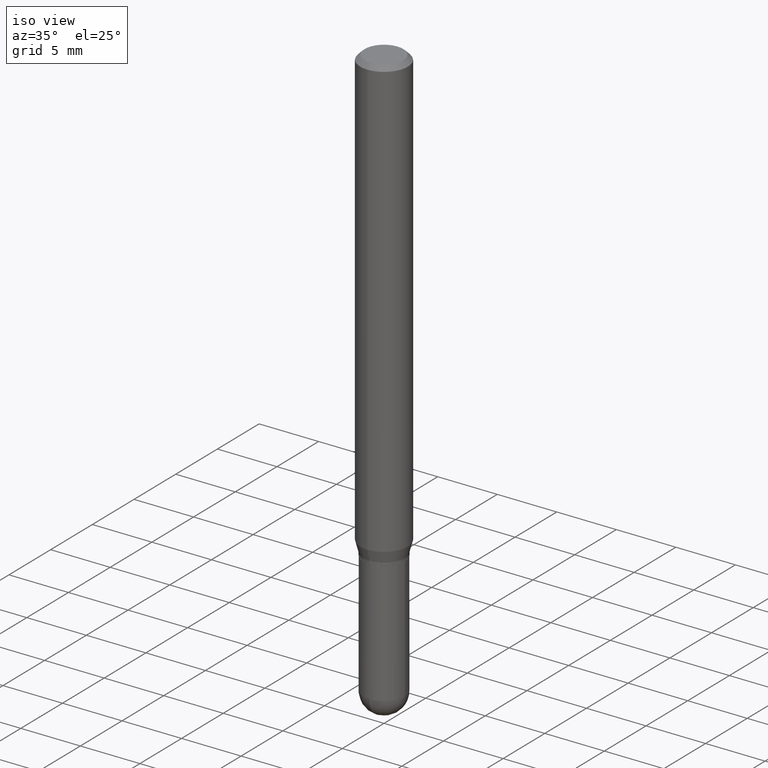
[diagram: clean part render]
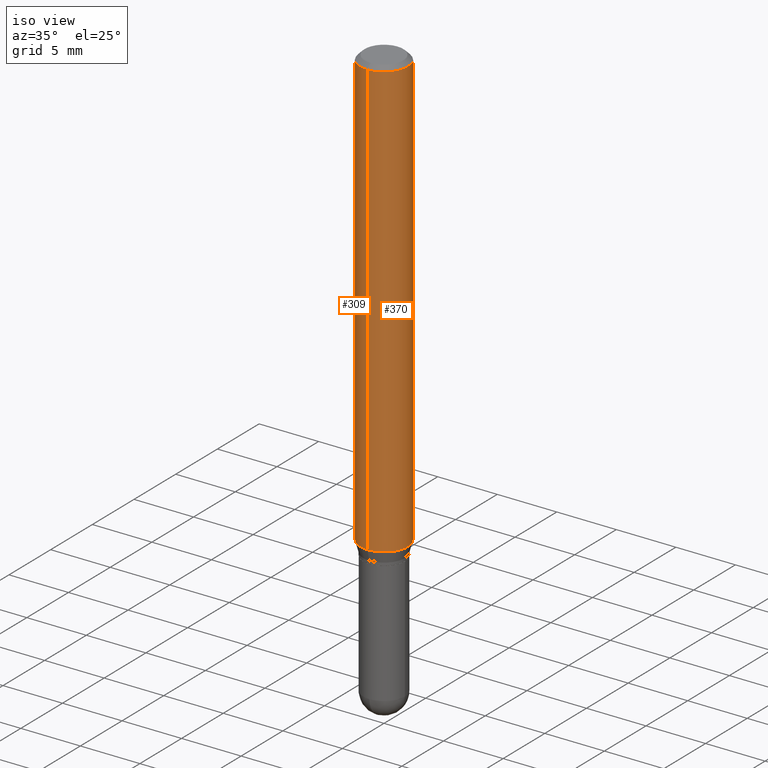
[diagram: same view with one multi-face feature highlighted, each face labeled with its STEP entity id]
A machine part, iso view. The highlighted faces form ONE feature: a constant-radius fillet chain: 2 tangent blend faces with common blend radius 2.0002 mm. The faces share edges in the B-rep.
Their STEP definitions:
[1] entity #309 (Cylinder):
#10 = LINE ( 'NONE', #372, #207 ) ;
#41 = ORIENTED_EDGE ( 'NONE', *, *, #445, .T. ) ;
#72 = VERTEX_POINT ( 'NONE', #383 ) ;
#85 = CARTESIAN_POINT ( 'NONE',  ( -5.499083108677932471E-16, -0.07874999999999997280, 2.749259756844772993E-16 ) ) ;
#117 = EDGE_LOOP ( 'NONE', ( #476, #41, #162, #167 ) ) ;
#118 = CIRCLE ( 'NONE', #319, 0.07875000000000000056 ) ;
#119 = DIRECTION ( 'NONE',  ( -6.982962677686265922E-15, -1.000000000000000000, 3.469013325287954477E-15 ) ) ;
#135 = AXIS2_PLACEMENT_3D ( 'NONE', #241, #329, #119 ) ;
#157 = CYLINDRICAL_SURFACE ( 'NONE', #183, 0.07874999999999997280 ) ;
#162 = ORIENTED_EDGE ( 'NONE', *, *, #250, .T. ) ;
#166 = VECTOR ( 'NONE', #248, 39.37007874015748143 ) ;
#167 = ORIENTED_EDGE ( 'NONE', *, *, #204, .F. ) ;
#170 = DIRECTION ( 'NONE',  ( -2.445718683186367016E-29, 3.491123500755268426E-15, 1.000000000000000000 ) ) ;
#183 = AXIS2_PLACEMENT_3D ( 'NONE', #450, #215, #351 ) ;
#204 = EDGE_CURVE ( 'NONE', #328, #72, #118, .T. ) ;
#207 = VECTOR ( 'NONE', #170, 39.37007874015748143 ) ;
#210 = CARTESIAN_POINT ( 'NONE',  ( 3.668578024779561944E-31, -5.236685251132917725E-17, -0.01500000000000004628 ) ) ;
#215 = DIRECTION ( 'NONE',  ( -2.445718683186366736E-29, 3.491123500755268031E-15, 1.000000000000000000 ) ) ;
#236 = DIRECTION ( 'NONE',  ( -2.445718683186366736E-29, 3.491123500755268031E-15, 1.000000000000000000 ) ) ;
#237 = VERTEX_POINT ( 'NONE', #367 ) ;
#241 = CARTESIAN_POINT ( 'NONE',  ( 3.544676203174537983E-29, -5.059822489211284830E-15, -1.449339299545445714 ) ) ;
#248 = DIRECTION ( 'NONE',  ( -2.445718683186367016E-29, 3.491123500755268426E-15, 1.000000000000000000 ) ) ;
#250 = EDGE_CURVE ( 'NONE', #252, #72, #292, .T. ) ;
#252 = VERTEX_POINT ( 'NONE', #417 ) ;
#292 = LINE ( 'NONE', #85, #166 ) ;
#306 = CIRCLE ( 'NONE', #135, 0.07874999999999997280 ) ;
#309 = ADVANCED_FACE ( 'NONE', ( #315 ), #157, .T. ) ;
#313 = CARTESIAN_POINT ( 'NONE',  ( 5.595524044111143991E-16, 0.07874999999999994504, -0.01500000000000032210 ) ) ;
#315 = FACE_OUTER_BOUND ( 'NONE', #117, .T. ) ;
#319 = AXIS2_PLACEMENT_3D ( 'NONE', #210, #236, #460 ) ;
#328 = VERTEX_POINT ( 'NONE', #313 ) ;
#329 = DIRECTION ( 'NONE',  ( -2.445718683186366736E-29, 3.491123500755268031E-15, 1.000000000000000000 ) ) ;
#351 = DIRECTION ( 'NONE',  ( -6.982962677686265922E-15, -1.000000000000000000, 3.491123500755268426E-15 ) ) ;
#367 = CARTESIAN_POINT ( 'NONE',  ( 5.595524044111142018E-16, 0.07874999999999494904, -1.449339299545445936 ) ) ;
#372 = CARTESIAN_POINT ( 'NONE',  ( 5.595524044110786045E-16, 0.07874999999999997280, -2.749259756844772993E-16 ) ) ;
#375 = EDGE_CURVE ( 'NONE', #237, #328, #10, .T. ) ;
#383 = CARTESIAN_POINT ( 'NONE',  ( -5.499083108677930499E-16, -0.07875000000000004219, -0.01499999999999977220 ) ) ;
#417 = CARTESIAN_POINT ( 'NONE',  ( -5.499083108677578469E-16, -0.07875000000000501044, -1.449339299545445270 ) ) ;
#445 = EDGE_CURVE ( 'NONE', #237, #252, #306, .T. ) ;
#450 = CARTESIAN_POINT ( 'NONE',  ( 0.000000000000000000, 0.000000000000000000, 0.000000000000000000 ) ) ;
#460 = DIRECTION ( 'NONE',  ( -6.982962677686264344E-15, -1.000000000000000000, 3.496114991891765576E-15 ) ) ;
#476 = ORIENTED_EDGE ( 'NONE', *, *, #375, .F. ) ;
[2] entity #370 (Cylinder):
#3 = ORIENTED_EDGE ( 'NONE', *, *, #128, .F. ) ;
#6 = ORIENTED_EDGE ( 'NONE', *, *, #172, .T. ) ;
#10 = LINE ( 'NONE', #372, #207 ) ;
#11 = DIRECTION ( 'NONE',  ( -6.982962677686265922E-15, -1.000000000000000000, 3.491123500755268426E-15 ) ) ;
#25 = CARTESIAN_POINT ( 'NONE',  ( 3.668578024779561944E-31, -5.236685251132917725E-17, -0.01500000000000004628 ) ) ;
#72 = VERTEX_POINT ( 'NONE', #383 ) ;
#85 = CARTESIAN_POINT ( 'NONE',  ( -5.499083108677932471E-16, -0.07874999999999997280, 2.749259756844772993E-16 ) ) ;
#111 = DIRECTION ( 'NONE',  ( -2.445718683186366736E-29, 3.491123500755268031E-15, 1.000000000000000000 ) ) ;
#128 = EDGE_CURVE ( 'NONE', #72, #328, #361, .T. ) ;
#145 = AXIS2_PLACEMENT_3D ( 'NONE', #25, #356, #437 ) ;
#166 = VECTOR ( 'NONE', #248, 39.37007874015748143 ) ;
#170 = DIRECTION ( 'NONE',  ( -2.445718683186367016E-29, 3.491123500755268426E-15, 1.000000000000000000 ) ) ;
#172 = EDGE_CURVE ( 'NONE', #252, #237, #200, .T. ) ;
#187 = EDGE_LOOP ( 'NONE', ( #6, #227, #3, #224 ) ) ;
#200 = CIRCLE ( 'NONE', #278, 0.07874999999999997280 ) ;
#202 = FACE_OUTER_BOUND ( 'NONE', #187, .T. ) ;
#207 = VECTOR ( 'NONE', #170, 39.37007874015748143 ) ;
#224 = ORIENTED_EDGE ( 'NONE', *, *, #250, .F. ) ;
#227 = ORIENTED_EDGE ( 'NONE', *, *, #375, .T. ) ;
#237 = VERTEX_POINT ( 'NONE', #367 ) ;
#248 = DIRECTION ( 'NONE',  ( -2.445718683186367016E-29, 3.491123500755268426E-15, 1.000000000000000000 ) ) ;
#250 = EDGE_CURVE ( 'NONE', #252, #72, #292, .T. ) ;
#251 = AXIS2_PLACEMENT_3D ( 'NONE', #426, #484, #11 ) ;
#252 = VERTEX_POINT ( 'NONE', #417 ) ;
#278 = AXIS2_PLACEMENT_3D ( 'NONE', #424, #111, #496 ) ;
#292 = LINE ( 'NONE', #85, #166 ) ;
#313 = CARTESIAN_POINT ( 'NONE',  ( 5.595524044111143991E-16, 0.07874999999999994504, -0.01500000000000032210 ) ) ;
#328 = VERTEX_POINT ( 'NONE', #313 ) ;
#356 = DIRECTION ( 'NONE',  ( -2.445718683186366736E-29, 3.491123500755268031E-15, 1.000000000000000000 ) ) ;
#361 = CIRCLE ( 'NONE', #145, 0.07875000000000000056 ) ;
#367 = CARTESIAN_POINT ( 'NONE',  ( 5.595524044111142018E-16, 0.07874999999999494904, -1.449339299545445936 ) ) ;
#370 = ADVANCED_FACE ( 'NONE', ( #202 ), #447, .T. ) ;
#372 = CARTESIAN_POINT ( 'NONE',  ( 5.595524044110786045E-16, 0.07874999999999997280, -2.749259756844772993E-16 ) ) ;
#375 = EDGE_CURVE ( 'NONE', #237, #328, #10, .T. ) ;
#383 = CARTESIAN_POINT ( 'NONE',  ( -5.499083108677930499E-16, -0.07875000000000004219, -0.01499999999999977220 ) ) ;
#417 = CARTESIAN_POINT ( 'NONE',  ( -5.499083108677578469E-16, -0.07875000000000501044, -1.449339299545445270 ) ) ;
#424 = CARTESIAN_POINT ( 'NONE',  ( 3.544676203174537983E-29, -5.059822489211284830E-15, -1.449339299545445714 ) ) ;
#426 = CARTESIAN_POINT ( 'NONE',  ( 0.000000000000000000, 0.000000000000000000, 0.000000000000000000 ) ) ;
#437 = DIRECTION ( 'NONE',  ( -6.982962677686264344E-15, -1.000000000000000000, 3.496114991891765576E-15 ) ) ;
#447 = CYLINDRICAL_SURFACE ( 'NONE', #251, 0.07874999999999997280 ) ;
#484 = DIRECTION ( 'NONE',  ( -2.445718683186366736E-29, 3.491123500755268031E-15, 1.000000000000000000 ) ) ;
#496 = DIRECTION ( 'NONE',  ( -6.982962677686265922E-15, -1.000000000000000000, 3.469013325287954477E-15 ) ) ;